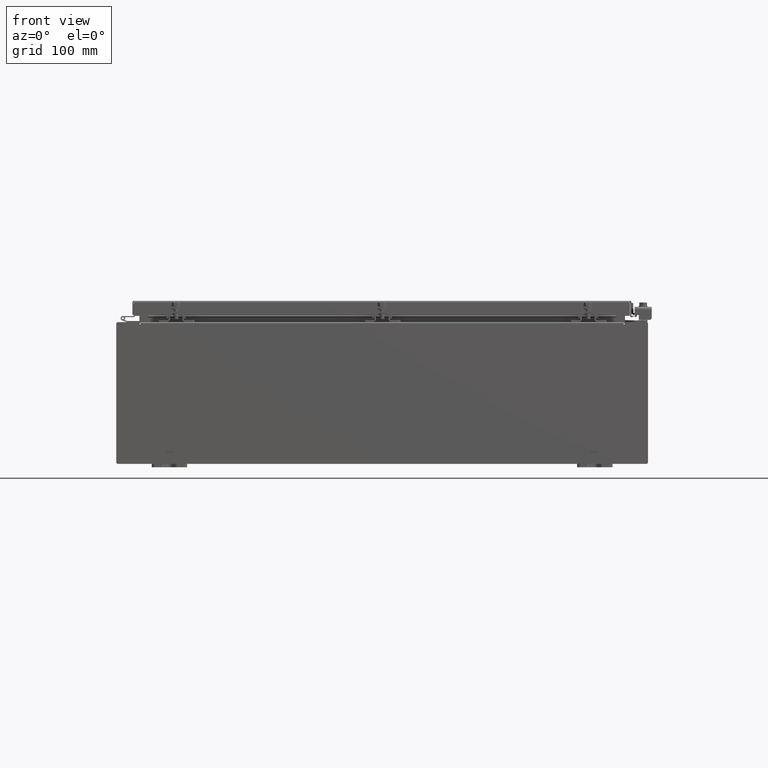
[diagram: clean part render]
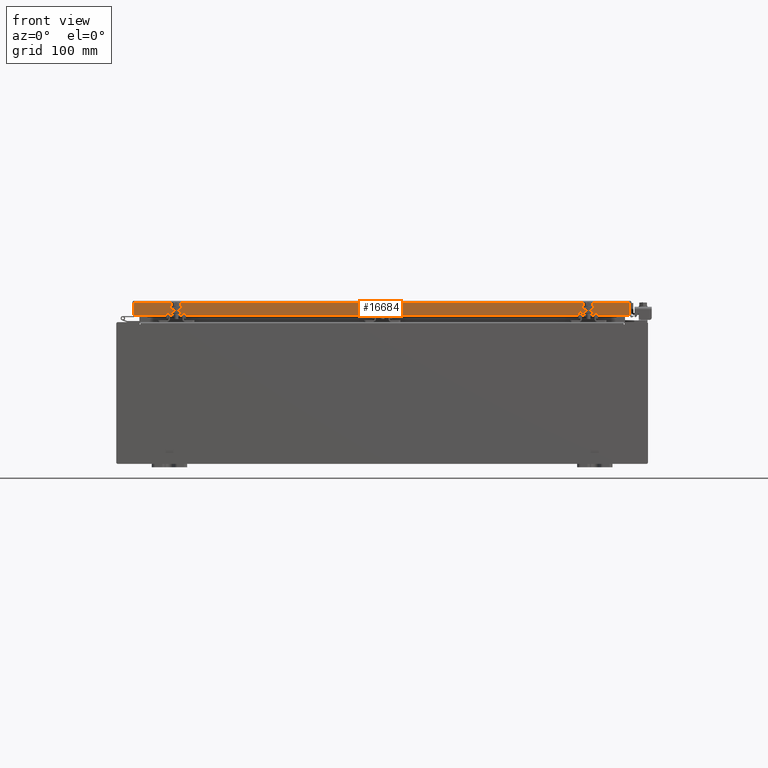
[diagram: same view with one face highlighted and labeled with its STEP entity id]
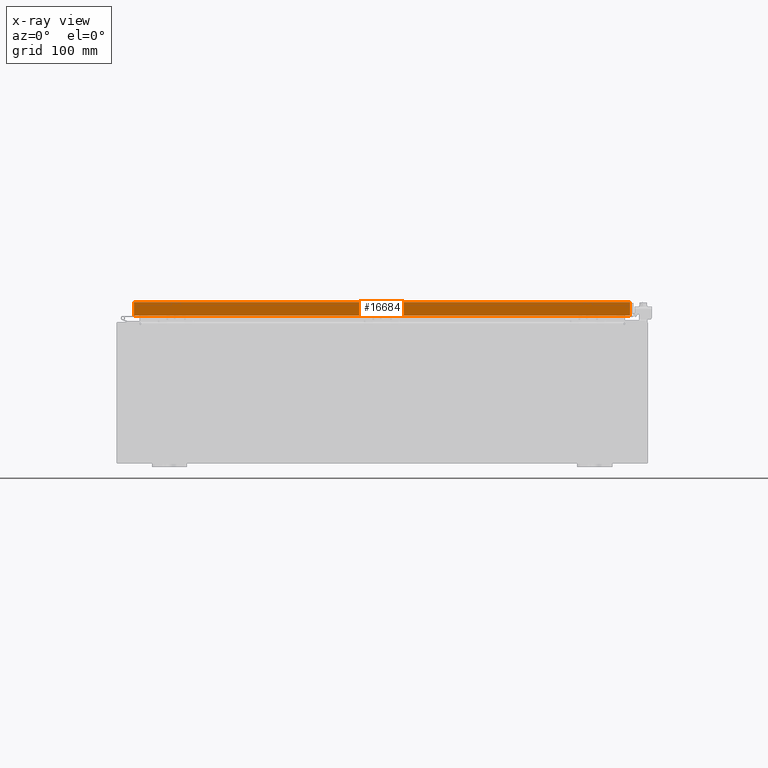
[diagram: x-ray of the same camera — body ghosted, the highlighted face saturated]
A machine part, front view. The second image highlights one B-rep face of the part: STEP entity #16684.
The next image is the same camera in x-ray: the body ghosted, the highlighted face saturated — about 0% of this face is hidden behind the body in this view.
In plain terms, the highlighted planar face has unit normal (-0, 1, -0).
Its self-contained STEP definition (entity closure, byte-faithful):
#514 = VERTEX_POINT ( 'NONE', #6789 ) ;
#885 = DIRECTION ( 'NONE',  ( -1.000000000000000000, 0.0000000000000000000, 0.0000000000000000000 ) ) ;
#1423 = VERTEX_POINT ( 'NONE', #31371 ) ;
#1672 = DIRECTION ( 'NONE',  ( -1.000000000000000000, -7.762034361881697200E-017, 1.212817869044015300E-016 ) ) ;
#1689 = CARTESIAN_POINT ( 'NONE',  ( -13.98915786437626900, -11.09400000000000700, -0.8499999999999963100 ) ) ;
#2238 = VERTEX_POINT ( 'NONE', #4404 ) ;
#3232 = VECTOR ( 'NONE', #30929, 39.37007874015748100 ) ;
#3245 = EDGE_CURVE ( 'NONE', #11634, #514, #31092, .T. ) ;
#3752 = LINE ( 'NONE', #29486, #30598 ) ;
#4189 = ORIENTED_EDGE ( 'NONE', *, *, #19665, .F. ) ;
#4404 = CARTESIAN_POINT ( 'NONE',  ( -13.23915786437626900, -11.09400000000000300, -0.8500000000000002000 ) ) ;
#4935 = PLANE ( 'NONE',  #21397 ) ;
#5528 = ORIENTED_EDGE ( 'NONE', *, *, #3245, .F. ) ;
#6059 = LINE ( 'NONE', #28685, #12026 ) ;
#6789 = CARTESIAN_POINT ( 'NONE',  ( 13.98915786437627100, -11.09400000000000700, -0.8499999999999996400 ) ) ;
#6885 = VERTEX_POINT ( 'NONE', #13739 ) ;
#6959 = VECTOR ( 'NONE', #885, 39.37007874015748100 ) ;
#8877 = CARTESIAN_POINT ( 'NONE',  ( 14.07800000000000300, -11.09400000000000700, -0.8499999999999996400 ) ) ;
#9150 = CARTESIAN_POINT ( 'NONE',  ( 13.98915786437624000, -11.09400000000000100, -0.08770000000000095800 ) ) ;
#11634 = VERTEX_POINT ( 'NONE', #9150 ) ;
#11687 = LINE ( 'NONE', #8877, #24331 ) ;
#12026 = VECTOR ( 'NONE', #23511, 39.37007874015748100 ) ;
#12418 = EDGE_CURVE ( 'NONE', #1423, #2238, #26412, .T. ) ;
#12551 = DIRECTION ( 'NONE',  ( 0.0000000000000000000, 5.637761885544720300E-015, 1.000000000000000000 ) ) ;
#13189 = CARTESIAN_POINT ( 'NONE',  ( 14.07800000000000300, -11.09400000000000100, -0.08769999999999984800 ) ) ;
#13739 = CARTESIAN_POINT ( 'NONE',  ( -13.98915786437626900, -11.09400000000000100, -0.08770000000000202600 ) ) ;
#14323 = DIRECTION ( 'NONE',  ( 0.0000000000000000000, -5.637761885544720300E-015, -1.000000000000000000 ) ) ;
#16462 = ORIENTED_EDGE ( 'NONE', *, *, #21539, .T. ) ;
#16526 = LINE ( 'NONE', #13189, #3232 ) ;
#16684 = ADVANCED_FACE ( 'NONE', ( #23191 ), #4935, .F. ) ;
#17439 = EDGE_CURVE ( 'NONE', #6885, #11634, #16526, .T. ) ;
#17640 = ORIENTED_EDGE ( 'NONE', *, *, #18502, .F. ) ;
#18502 = EDGE_CURVE ( 'NONE', #2238, #29997, #11687, .T. ) ;
#19363 = ORIENTED_EDGE ( 'NONE', *, *, #17439, .F. ) ;
#19665 = EDGE_CURVE ( 'NONE', #514, #1423, #6059, .T. ) ;
#21079 = DIRECTION ( 'NONE',  ( -0.0000000000000000000, -5.637761885544720300E-015, -1.000000000000000000 ) ) ;
#21397 = AXIS2_PLACEMENT_3D ( 'NONE', #22447, #27723, #12551 ) ;
#21539 = EDGE_CURVE ( 'NONE', #6885, #29997, #3752, .T. ) ;
#22447 = CARTESIAN_POINT ( 'NONE',  ( 8.611200921071631100E-016, -11.09400000000000100, 6.280614401424470700E-014 ) ) ;
#22639 = VECTOR ( 'NONE', #21079, 39.37007874015748100 ) ;
#23191 = FACE_OUTER_BOUND ( 'NONE', #27675, .T. ) ;
#23511 = DIRECTION ( 'NONE',  ( -1.000000000000000000, -7.762034361881697200E-017, 1.212817869044015300E-016 ) ) ;
#24331 = VECTOR ( 'NONE', #1672, 39.37007874015748100 ) ;
#25057 = ORIENTED_EDGE ( 'NONE', *, *, #12418, .F. ) ;
#25809 = CARTESIAN_POINT ( 'NONE',  ( 13.23915786437626900, -11.09400000000000300, -0.8500000000000002000 ) ) ;
#26412 = LINE ( 'NONE', #25809, #6959 ) ;
#27675 = EDGE_LOOP ( 'NONE', ( #19363, #16462, #17640, #25057, #4189, #5528 ) ) ;
#27723 = DIRECTION ( 'NONE',  ( -7.762034361881765000E-017, 1.000000000000000000, -5.637761885544720300E-015 ) ) ;
#28648 = CARTESIAN_POINT ( 'NONE',  ( 13.98915786437627100, -11.09400000000000100, -0.07469999999999958600 ) ) ;
#28685 = CARTESIAN_POINT ( 'NONE',  ( 14.07800000000000300, -11.09400000000000700, -0.8499999999999996400 ) ) ;
#29486 = CARTESIAN_POINT ( 'NONE',  ( -13.98915786437626700, -11.09400000000000100, 6.280614401424472000E-014 ) ) ;
#29997 = VERTEX_POINT ( 'NONE', #1689 ) ;
#30598 = VECTOR ( 'NONE', #14323, 39.37007874015748100 ) ;
#30929 = DIRECTION ( 'NONE',  ( 1.000000000000000000, 7.762034361881809300E-017, 7.762034361881697200E-017 ) ) ;
#31092 = LINE ( 'NONE', #28648, #22639 ) ;
#31371 = CARTESIAN_POINT ( 'NONE',  ( 13.23915786437626900, -11.09400000000000300, -0.8500000000000002000 ) ) ;